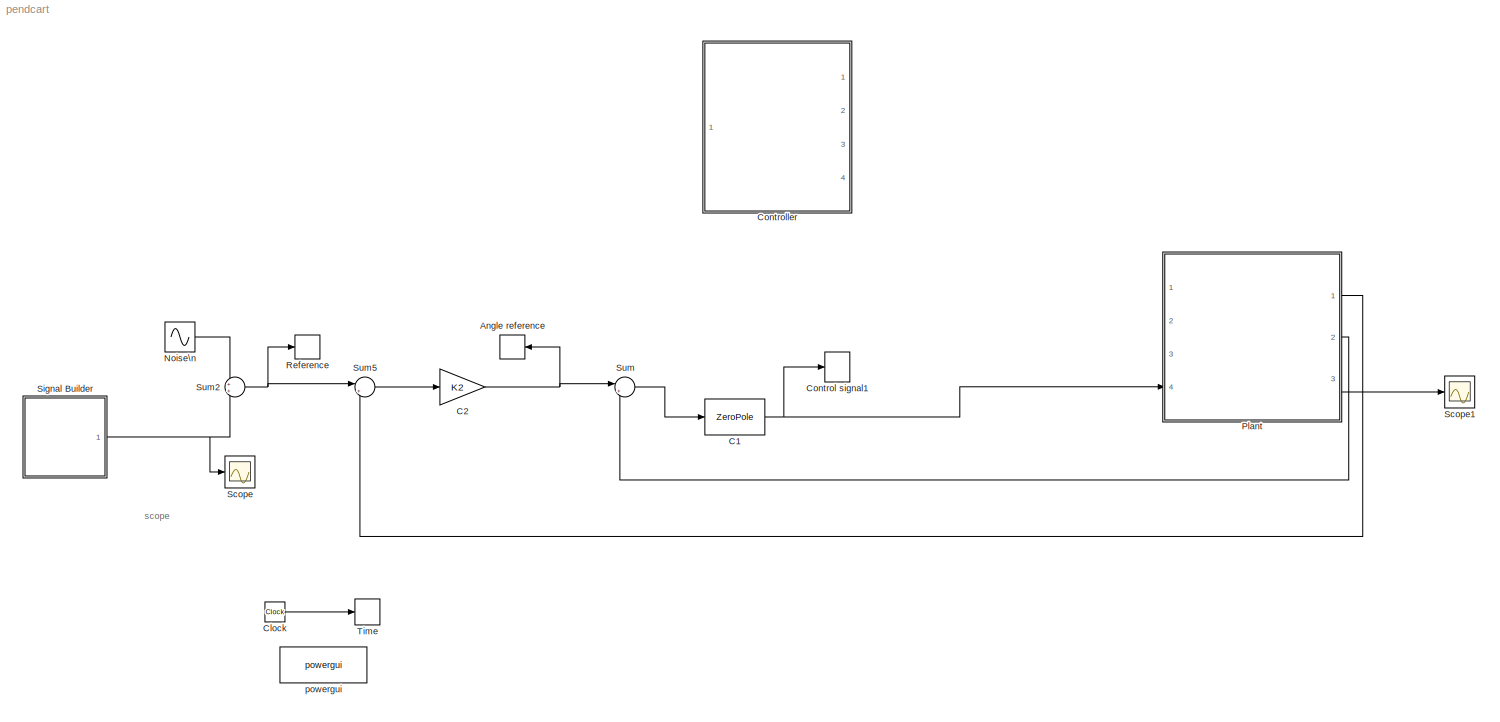
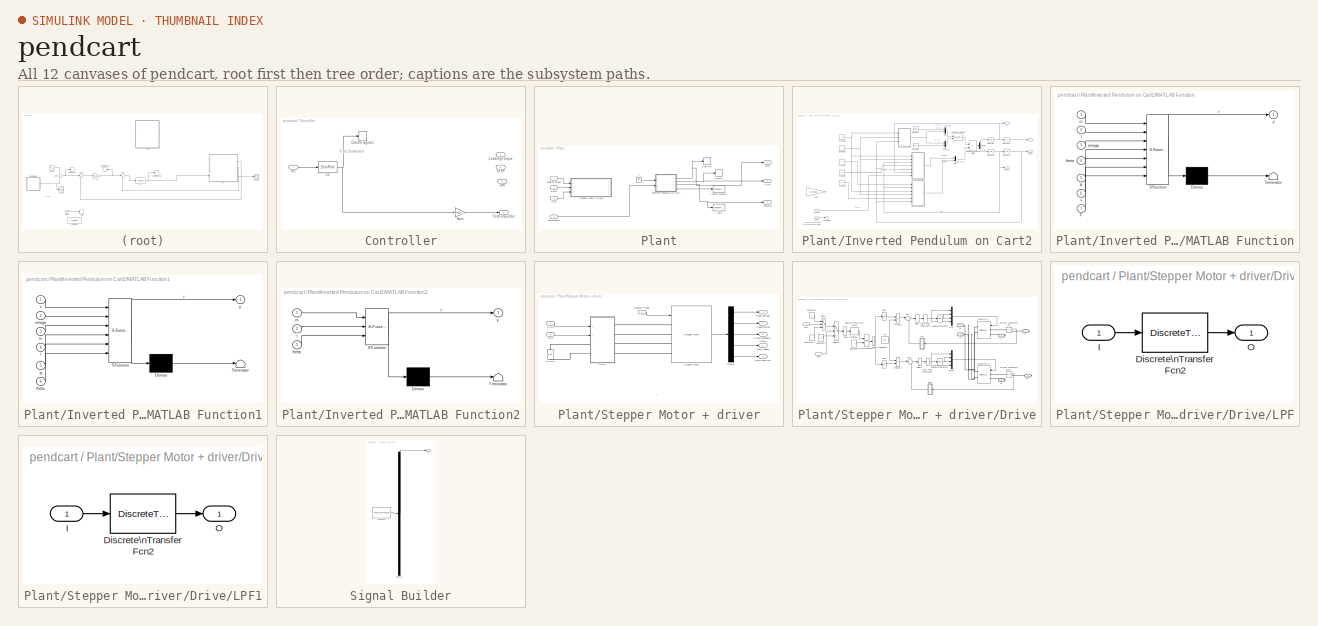
[diagram: thumbnail index - all 12 canvases of the model, root first then tree order]
MODEL pendcart
KIND model
BLOCK [ToWorkspace] Angle reference
  MaxDataPoints = inf
  Ports = [1]
  SID = 2
  SampleTime = -1
  VariableName = ri
BLOCK [ZeroPole] C1
  Gain = [K1]
  Poles = [-p1]
  SID = 376
  Zeros = [-p]
BLOCK [Gain] C2
  Gain = K2
  OutDataTypeStr = Inherit: Inherit via internal rule
  ParamDataTypeStr = Inherit: Inherit via internal rule
  SID = 114
  SaturateOnIntegerOverflow = off
BLOCK [Clock] Clock
  SID = 4
BLOCK [ToWorkspace] Control signal1
  MaxDataPoints = inf
  Ports = [1]
  SID = 377
  SampleTime = -1
  VariableName = u1
BLOCK [SubSystem] Controller
  Ports = [1, 4]
  RequestExecContextInheritance = off
  SID = 366
  Variant = off
BLOCK [ZeroPole] Controller/C1
  Gain = [K1]
  Poles = [-p1]
  SID = 368
  Zeros = [-p]
BLOCK [ToWorkspace] Controller/Control signal1
  MaxDataPoints = inf
  Ports = [1]
  SID = 369
  SampleTime = -1
  VariableName = u
BLOCK [Outport] Controller/DIR
  IconDisplay = Port number
  Port = 3
  SID = 373
BLOCK [Gain] Controller/Gain
  Gain = Wheel_Radius
  OutDataTypeStr = Inherit: Inherit via internal rule
  ParamDataTypeStr = Inherit: Inherit via internal rule
  SID = 370
  SaturateOnIntegerOverflow = off
BLOCK [Inport] Controller/In1
  IconDisplay = Port number
  SID = 367
BLOCK [Outport] Controller/LoadingTorque
  IconDisplay = Port number
  SID = 371
BLOCK [Outport] Controller/STEP
  IconDisplay = Port number
  Port = 2
  SID = 372
BLOCK [Outport] Controller/TestTorqueOut
  IconDisplay = Port number
  Port = 4
  SID = 374
BLOCK [Sin] Noise\n
  Amplitude = 0.01
  Frequency = 3
  Ports = [0, 1]
  SID = 264
  SampleTime = 0
BLOCK [SubSystem] Plant
  Ports = [4, 3]
  RequestExecContextInheritance = off
  SID = 343
  Variant = off
BLOCK [Ground] Plant/0
  SID = 94
BLOCK [ToWorkspace] Plant/Angle
  MaxDataPoints = inf
  Ports = [1]
  SID = 1
  SampleTime = -1
  VariableName = theta
BLOCK [ToWorkspace] Plant/Angular velocity
  MaxDataPoints = inf
  Ports = [1]
  SID = 3
  SampleTime = -1
  VariableName = omega
BLOCK [Inport] Plant/DIR
  IconDisplay = Port number
  Port = 3
  SID = 346
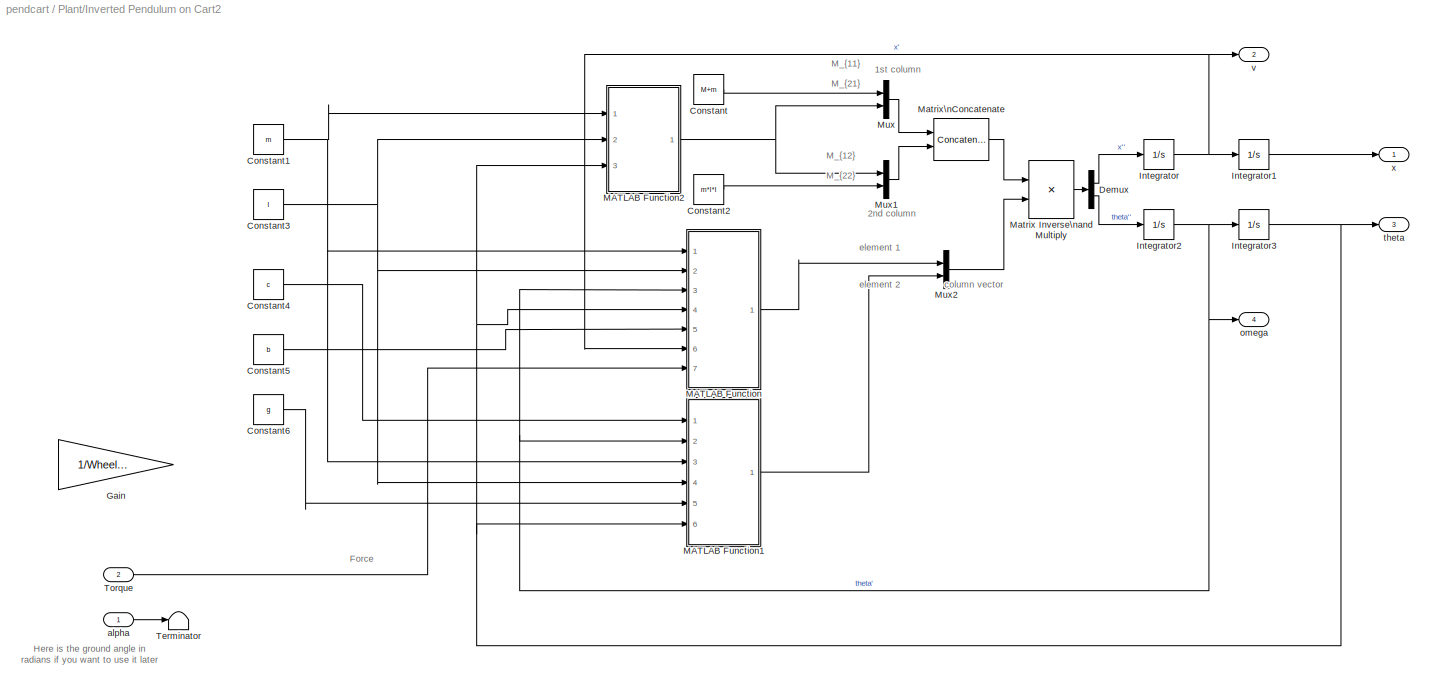
BLOCK [SubSystem] Plant/Inverted Pendulum on Cart2
  Ports = [2, 4]
  RequestExecContextInheritance = off
  SID = 16
  Variant = off
BLOCK [Constant] Plant/Inverted Pendulum on Cart2/Constant
  SID = 134
  Value = M+m
BLOCK [Constant] Plant/Inverted Pendulum on Cart2/Constant1
  SID = 135
  Value = m
BLOCK [Constant] Plant/Inverted Pendulum on Cart2/Constant2
  SID = 136
  Value = m*l*l
BLOCK [Constant] Plant/Inverted Pendulum on Cart2/Constant3
  SID = 137
  Value = l
BLOCK [Constant] Plant/Inverted Pendulum on Cart2/Constant4
  SID = 138
  Value = c
BLOCK [Constant] Plant/Inverted Pendulum on Cart2/Constant5
  SID = 139
  Value = b
BLOCK [Constant] Plant/Inverted Pendulum on Cart2/Constant6
  SID = 140
  Value = g
BLOCK [Demux] Plant/Inverted Pendulum on Cart2/Demux
  DisplayOption = bar
  Outputs = 2
  Ports = [1, 2]
  SID = 141
BLOCK [Gain] Plant/Inverted Pendulum on Cart2/Gain
  Gain = 1/Wheel_Radius
  OutDataTypeStr = Inherit: Inherit via internal rule
  ParamDataTypeStr = Inherit: Inherit via internal rule
  SID = 268
  SaturateOnIntegerOverflow = off
BLOCK [Integrator] Plant/Inverted Pendulum on Cart2/Integrator
  Ports = [1, 1]
  SID = 142
BLOCK [Integrator] Plant/Inverted Pendulum on Cart2/Integrator1
  Ports = [1, 1]
  SID = 143
BLOCK [Integrator] Plant/Inverted Pendulum on Cart2/Integrator2
  Ports = [1, 1]
  SID = 144
BLOCK [Integrator] Plant/Inverted Pendulum on Cart2/Integrator3
  InitialCondition = theta0
  Ports = [1, 1]
  SID = 145
BLOCK [SubSystem] Plant/Inverted Pendulum on Cart2/MATLAB Function
  ErrorFcn = Stateflow.Translate.translate
  PermitHierarchicalResolution = ExplicitOnly
  Ports = [7, 1]
  RequestExecContextInheritance = off
  SFBlockType = MATLAB Function
  SID = 146
  TreatAsAtomicUnit = on
  Variant = off
BLOCK [Demux] Plant/Inverted Pendulum on Cart2/MATLAB Function/ Demux 
  Outputs = 1
  Ports = [1, 1]
  SID = 146::20
BLOCK [S-Function] Plant/Inverted Pendulum on Cart2/MATLAB Function/ SFunction 
  EnableBusSupport = on
  FunctionName = sf_sfun
  PortCounts = [7 2]
  Ports = [7, 2]
  SFcnIsStateOwnerBlock = off
  SFunctionDeploymentMode = off
  SID = 146::19
  Tag = Stateflow S-Function pendcart 2
BLOCK [Terminator] Plant/Inverted Pendulum on Cart2/MATLAB Function/ Terminator 
  SID = 146::21
BLOCK [Inport] Plant/Inverted Pendulum on Cart2/MATLAB Function/F
  IconDisplay = Port number
  Port = 7
  SID = 146::29
BLOCK [Inport] Plant/Inverted Pendulum on Cart2/MATLAB Function/b
  IconDisplay = Port number
  Port = 5
  SID = 146::27
BLOCK [Inport] Plant/Inverted Pendulum on Cart2/MATLAB Function/l
  IconDisplay = Port number
  Port = 2
  SID = 146::24
BLOCK [Inport] Plant/Inverted Pendulum on Cart2/MATLAB Function/m
  IconDisplay = Port number
  SID = 146::23
BLOCK [Inport] Plant/Inverted Pendulum on Cart2/MATLAB Function/omega
  IconDisplay = Port number
  Port = 3
  SID = 146::25
BLOCK [Inport] Plant/Inverted Pendulum on Cart2/MATLAB Function/theta
  IconDisplay = Port number
  Port = 4
  SID = 146::26
BLOCK [Inport] Plant/Inverted Pendulum on Cart2/MATLAB Function/v
  IconDisplay = Port number
  Port = 6
  SID = 146::28
BLOCK [Outport] Plant/Inverted Pendulum on Cart2/MATLAB Function/y
  IconDisplay = Port number
  SID = 146::5
BLOCK [SubSystem] Plant/Inverted Pendulum on Cart2/MATLAB Function1
  ErrorFcn = Stateflow.Translate.translate
  PermitHierarchicalResolution = ExplicitOnly
  Ports = [6, 1]
  RequestExecContextInheritance = off
  SFBlockType = MATLAB Function
  SID = 147
  TreatAsAtomicUnit = on
  Variant = off
BLOCK [Demux] Plant/Inverted Pendulum on Cart2/MATLAB Function1/ Demux 
  Outputs = 1
  Ports = [1, 1]
  SID = 147::20
BLOCK [S-Function] Plant/Inverted Pendulum on Cart2/MATLAB Function1/ SFunction 
  EnableBusSupport = on
  FunctionName = sf_sfun
  PortCounts = [6 2]
  Ports = [6, 2]
  SFcnIsStateOwnerBlock = off
  SFunctionDeploymentMode = off
  SID = 147::19
  Tag = Stateflow S-Function pendcart 1
BLOCK [Terminator] Plant/Inverted Pendulum on Cart2/MATLAB Function1/ Terminator 
  SID = 147::21
BLOCK [Inport] Plant/Inverted Pendulum on Cart2/MATLAB Function1/c
  IconDisplay = Port number
  SID = 147::23
BLOCK [Inport] Plant/Inverted Pendulum on Cart2/MATLAB Function1/g
  IconDisplay = Port number
  Port = 5
  SID = 147::27
BLOCK [Inport] Plant/Inverted Pendulum on Cart2/MATLAB Function1/l
  IconDisplay = Port number
  Port = 4
  SID = 147::26
BLOCK [Inport] Plant/Inverted Pendulum on Cart2/MATLAB Function1/m
  IconDisplay = Port number
  Port = 3
  SID = 147::25
BLOCK [Inport] Plant/Inverted Pendulum on Cart2/MATLAB Function1/omega
  IconDisplay = Port number
  Port = 2
  SID = 147::24
BLOCK [Inport] Plant/Inverted Pendulum on Cart2/MATLAB Function1/theta
  IconDisplay = Port number
  Port = 6
  SID = 147::28
BLOCK [Outport] Plant/Inverted Pendulum on Cart2/MATLAB Function1/y
  IconDisplay = Port number
  SID = 147::5
BLOCK [SubSystem] Plant/Inverted Pendulum on Cart2/MATLAB Function2
  ErrorFcn = Stateflow.Translate.translate
  PermitHierarchicalResolution = ExplicitOnly
  Ports = [3, 1]
  RequestExecContextInheritance = off
  SFBlockType = MATLAB Function
  SID = 148
  TreatAsAtomicUnit = on
  Variant = off
BLOCK [Demux] Plant/Inverted Pendulum on Cart2/MATLAB Function2/ Demux 
  Outputs = 1
  Ports = [1, 1]
  SID = 148::20
BLOCK [S-Function] Plant/Inverted Pendulum on Cart2/MATLAB Function2/ SFunction 
  EnableBusSupport = on
  FunctionName = sf_sfun
  PortCounts = [3 2]
  Ports = [3, 2]
  SFcnIsStateOwnerBlock = off
  SFunctionDeploymentMode = off
  SID = 148::19
  Tag = Stateflow S-Function pendcart 3
BLOCK [Terminator] Plant/Inverted Pendulum on Cart2/MATLAB Function2/ Terminator 
  SID = 148::21
BLOCK [Inport] Plant/Inverted Pendulum on Cart2/MATLAB Function2/l
  IconDisplay = Port number
  Port = 2
  SID = 148::24
BLOCK [Inport] Plant/Inverted Pendulum on Cart2/MATLAB Function2/m
  IconDisplay = Port number
  SID = 148::23
BLOCK [Inport] Plant/Inverted Pendulum on Cart2/MATLAB Function2/theta
  IconDisplay = Port number
  Port = 3
  SID = 148::25
BLOCK [Outport] Plant/Inverted Pendulum on Cart2/MATLAB Function2/y
  IconDisplay = Port number
  SID = 148::5
BLOCK [Product] Plant/Inverted Pendulum on Cart2/Matrix Inverse\nand Multiply
  InputSameDT = off
  Inputs = /*
  Multiplication = Matrix(*)
  OutDataTypeStr = Inherit: Inherit via internal rule
  Ports = [2, 1]
  RndMeth = Floor
  SID = 150
  SaturateOnIntegerOverflow = off
BLOCK [Concatenate] Plant/Inverted Pendulum on Cart2/Matrix\nConcatenate
  ConcatenateDimension = 2
  Mode = Multidimensional array
  Ports = [2, 1]
  SID = 149
BLOCK [Mux] Plant/Inverted Pendulum on Cart2/Mux
  DisplayOption = bar
  Inputs = 2
  Ports = [2, 1]
  SID = 151
BLOCK [Mux] Plant/Inverted Pendulum on Cart2/Mux1
  DisplayOption = bar
  Inputs = 2
  Ports = [2, 1]
  SID = 152
BLOCK [Mux] Plant/Inverted Pendulum on Cart2/Mux2
  DisplayOption = bar
  Inputs = 2
  Ports = [2, 1]
  SID = 153
BLOCK [Terminator] Plant/Inverted Pendulum on Cart2/Terminator
  SID = 154
BLOCK [Inport] Plant/Inverted Pendulum on Cart2/Torque
  IconDisplay = Port number
  Port = 2
  SID = 267
BLOCK [Inport] Plant/Inverted Pendulum on Cart2/alpha
  IconDisplay = Port number
  SID = 132
BLOCK [Outport] Plant/Inverted Pendulum on Cart2/omega
  IconDisplay = Port number
  Port = 4
  SID = 158
BLOCK [Outport] Plant/Inverted Pendulum on Cart2/theta
  IconDisplay = Port number
  Port = 3
  SID = 157
BLOCK [Outport] Plant/Inverted Pendulum on Cart2/v
  IconDisplay = Port number
  Port = 2
  SID = 156
BLOCK [Outport] Plant/Inverted Pendulum on Cart2/x
  IconDisplay = Port number
  SID = 155
BLOCK [Inport] Plant/Loading Torque
  IconDisplay = Port number
  SID = 344
BLOCK [ToWorkspace] Plant/Position
  MaxDataPoints = inf
  Ports = [1]
  SID = 32
  SampleTime = -1
  VariableName = x
BLOCK [Inport] Plant/STEP
  IconDisplay = Port number
  Port = 2
  SID = 345
BLOCK [SubSystem] Plant/Stepper Motor + driver
  Ports = [3, 5]
  RequestExecContextInheritance = off
  SID = 272
  Variant = off
BLOCK [Reference] Plant/Stepper Motor + driver/28 VDC  REF=powerlib/Electrical\nSources/DC Voltage Source
  Amplitude = 28
  Measurements = None
  Ports = [0, 0, 0, 0, 0, 1, 1]
  SID = 286
  SourceBlock = powerlib/Electrical\nSources/DC Voltage Source
  SourceProductBaseCode = PS
  SourceProductName = Simscape Power Systems
  SourceType = DC Voltage Source
BLOCK [Inport] Plant/Stepper Motor + driver/DIR
  IconDisplay = Port number
  Port = 3
  SID = 340
BLOCK [Demux] Plant/Stepper Motor + driver/Demux
  DisplayOption = bar
  Outputs = 5
  Ports = [1, 5]
  SID = 270
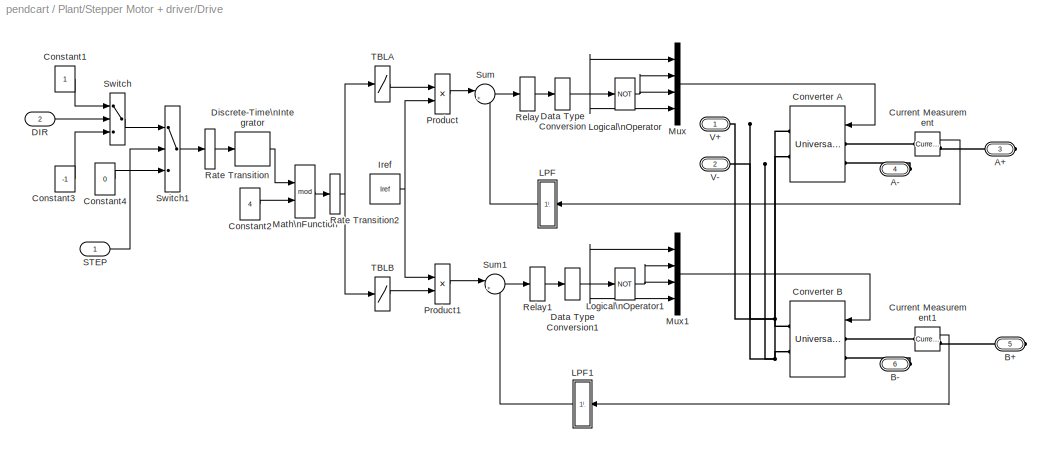
BLOCK [SubSystem] Plant/Stepper Motor + driver/Drive
  Ports = [2, 0, 0, 0, 0, 2, 4]
  RequestExecContextInheritance = off
  SID = 287
  Variant = off
BLOCK [PMIOPort] Plant/Stepper Motor + driver/Drive/A+
  Port = 3
  SID = 329
  Side = Right
BLOCK [PMIOPort] Plant/Stepper Motor + driver/Drive/A-
  Port = 4
  SID = 330
  Side = Right
BLOCK [PMIOPort] Plant/Stepper Motor + driver/Drive/B+
  Port = 5
  SID = 331
  Side = Right
BLOCK [PMIOPort] Plant/Stepper Motor + driver/Drive/B-
  Port = 6
  SID = 332
  Side = Right
BLOCK [Constant] Plant/Stepper Motor + driver/Drive/Constant1
  SID = 290
  SampleTime = Ts
BLOCK [Constant] Plant/Stepper Motor + driver/Drive/Constant2
  SID = 291
  SampleTime = Nstep*Ts
  Value = 4
BLOCK [Constant] Plant/Stepper Motor + driver/Drive/Constant3
  SID = 292
  SampleTime = Ts
  Value = -1
BLOCK [Constant] Plant/Stepper Motor + driver/Drive/Constant4
  SID = 293
  SampleTime = Ts
  Value = 0
BLOCK [Reference] Plant/Stepper Motor + driver/Drive/Converter A  REF=powerlib/Power\nElectronics/Universal Bridge
  Arms = 2
  Device = MOSFET / Diodes
  ForwardVoltage = 0
  ForwardVoltages = [  0  0  ]
  GTOparameters = [ 10e-6 , 20e-6 ]
  IGBTparameters = [ 0.5e-6 , 0.5e-6 ]
  Lon = 0
  Measurements = None
  Measurements_2 = None
  Ports = [1, 0, 0, 0, 0, 2, 2]
  Ron = 1e-3*10
  SID = 294
  SnubberCapacitance = inf
  SnubberResistance = 10000
  SourceBlock = powerlib/Power\nElectronics/Universal Bridge
  SourceProductBaseCode = PS
  SourceProductName = Simscape Power Systems
  SourceType = Universal Bridge
  converterType = Rectifier
BLOCK [Reference] Plant/Stepper Motor + driver/Drive/Converter B  REF=powerlib/Power\nElectronics/Universal Bridge
  Arms = 2
  Device = MOSFET / Diodes
  ForwardVoltage = 0
  ForwardVoltages = [  0  0  ]
  GTOparameters = [ 10e-6 , 20e-6 ]
  IGBTparameters = [ 0.5e-6 , 0.5e-6 ]
  Lon = 0
  Measurements = None
  Measurements_2 = None
  Ports = [1, 0, 0, 0, 0, 2, 2]
  Ron = 1e-3*10
  SID = 295
  SnubberCapacitance = inf
  SnubberResistance = 10000
  SourceBlock = powerlib/Power\nElectronics/Universal Bridge
  SourceProductBaseCode = PS
  SourceProductName = Simscape Power Systems
  SourceType = Universal Bridge
  converterType = Rectifier
BLOCK [Reference] Plant/Stepper Motor + driver/Drive/Current Measurement  REF=powerlib/Measurements/Current Measurement
  OutputType = Complex
  PSBequivalent = 0
  PhasorSimulation = off
  Ports = [0, 1, 0, 0, 0, 1, 1]
  SID = 296
  SourceBlock = powerlib/Measurements/Current Measurement
  SourceProductBaseCode = PS
  SourceProductName = Simscape Power Systems
  SourceType = Current Measurement
BLOCK [Reference] Plant/Stepper Motor + driver/Drive/Current Measurement1  REF=powerlib/Measurements/Current Measurement
  OutputType = Complex
  PSBequivalent = 0
  PhasorSimulation = off
  Ports = [0, 1, 0, 0, 0, 1, 1]
  SID = 297
  SourceBlock = powerlib/Measurements/Current Measurement
  SourceProductBaseCode = PS
  SourceProductName = Simscape Power Systems
  SourceType = Current Measurement
BLOCK [Inport] Plant/Stepper Motor + driver/Drive/DIR
  IconDisplay = Port number
  Port = 2
  SID = 289
BLOCK [DataTypeConversion] Plant/Stepper Motor + driver/Drive/Data Type Conversion
  RndMeth = Floor
  SID = 298
  SaturateOnIntegerOverflow = off
BLOCK [DataTypeConversion] Plant/Stepper Motor + driver/Drive/Data Type Conversion1
  RndMeth = Floor
  SID = 299
  SaturateOnIntegerOverflow = off
BLOCK [DiscreteIntegrator] Plant/Stepper Motor + driver/Drive/Discrete-Time\nIntegrator
  ICPrevOutput = DiscIntNeverNeededParam
  ICPrevScaledInput = DiscIntNeverNeededParam
  IntegratorMethod = Accumulation: Forward Euler
  Ports = [1, 1]
  SID = 300
  SampleTime = Nstep*Ts
BLOCK [Constant] Plant/Stepper Motor + driver/Drive/Iref
  SID = 301
  SampleTime = Ts
  Value = Iref
BLOCK [SubSystem] Plant/Stepper Motor + driver/Drive/LPF
  Ports = [1, 1]
  RequestExecContextInheritance = off
  SID = 302
  Variant = off
BLOCK [DiscreteTransferFcn] Plant/Stepper Motor + driver/Drive/LPF/Discrete\nTransfer Fcn2
  Denominator = DD
  InputPortMap = u0
  Numerator = NN
  Ports = [1, 1]
  SID = 304
  SampleTime = Ts
BLOCK [Inport] Plant/Stepper Motor + driver/Drive/LPF/I
  IconDisplay = Port number
  SID = 303
BLOCK [Outport] Plant/Stepper Motor + driver/Drive/LPF/O
  IconDisplay = Port number
  SID = 305
BLOCK [SubSystem] Plant/Stepper Motor + driver/Drive/LPF1
  Ports = [1, 1]
  RequestExecContextInheritance = off
  SID = 306
  Variant = off
BLOCK [DiscreteTransferFcn] Plant/Stepper Motor + driver/Drive/LPF1/Discrete\nTransfer Fcn2
  Denominator = DD
  InputPortMap = u0
  Numerator = NN
  Ports = [1, 1]
  SID = 308
  SampleTime = Ts
BLOCK [Inport] Plant/Stepper Motor + driver/Drive/LPF1/I
  IconDisplay = Port number
  SID = 307
BLOCK [Outport] Plant/Stepper Motor + driver/Drive/LPF1/O
  IconDisplay = Port number
  SID = 309
BLOCK [Logic] Plant/Stepper Motor + driver/Drive/Logical\nOperator
  AllPortsSameDT = off
  Operator = NOT
  OutDataTypeStr = boolean
  Ports = [1, 1]
  SID = 310
BLOCK [Logic] Plant/Stepper Motor + driver/Drive/Logical\nOperator1
  AllPortsSameDT = off
  Operator = NOT
  OutDataTypeStr = boolean
  Ports = [1, 1]
  SID = 311
BLOCK [Math] Plant/Stepper Motor + driver/Drive/Math\nFunction
  Operator = mod
  Ports = [2, 1]
  SID = 312
  SampleTime = Nstep*Ts
BLOCK [Mux] Plant/Stepper Motor + driver/Drive/Mux
  DisplayOption = bar
  Ports = [4, 1]
  SID = 313
BLOCK [Mux] Plant/Stepper Motor + driver/Drive/Mux1
  DisplayOption = bar
  Ports = [4, 1]
  SID = 314
BLOCK [Product] Plant/Stepper Motor + driver/Drive/Product
  InputSameDT = off
  OutDataTypeStr = Inherit: Inherit via internal rule
  Ports = [2, 1]
  SID = 315
  SaturateOnIntegerOverflow = off
BLOCK [Product] Plant/Stepper Motor + driver/Drive/Product1
  InputSameDT = off
  OutDataTypeStr = Inherit: Inherit via internal rule
  Ports = [2, 1]
  SID = 316
  SaturateOnIntegerOverflow = off
BLOCK [RateTransition] Plant/Stepper Motor + driver/Drive/Rate Transition
  SID = 317
BLOCK [RateTransition] Plant/Stepper Motor + driver/Drive/Rate Transition2
  SID = 318
BLOCK [Relay] Plant/Stepper Motor + driver/Drive/Relay
  OffSwitchValue = -0.01
  OnSwitchValue = 0.01
  SID = 319
BLOCK [Relay] Plant/Stepper Motor + driver/Drive/Relay1
  OffSwitchValue = -0.01
  OnSwitchValue = 0.01
  OutDataTypeStr = Inherit: Inherit via back propagation
  SID = 320
BLOCK [Inport] Plant/Stepper Motor + driver/Drive/STEP
  IconDisplay = Port number
  SID = 288
BLOCK [Sum] Plant/Stepper Motor + driver/Drive/Sum
  IconShape = round
  InputSameDT = off
  Inputs = |+-
  Ports = [2, 1]
  SID = 321
  SaturateOnIntegerOverflow = off
BLOCK [Sum] Plant/Stepper Motor + driver/Drive/Sum1
  IconShape = round
  InputSameDT = off
  Inputs = |+-
  Ports = [2, 1]
  SID = 322
  SaturateOnIntegerOverflow = off
BLOCK [Switch] Plant/Stepper Motor + driver/Drive/Switch
  InputSameDT = off
  SID = 323
  SampleTime = Ts
  SaturateOnIntegerOverflow = off
  Threshold = 0.5
  ZeroCross = off
BLOCK [Switch] Plant/Stepper Motor + driver/Drive/Switch1
  InputSameDT = off
  SID = 324
  SampleTime = Ts
  SaturateOnIntegerOverflow = off
  Threshold = 0.5
  ZeroCross = off
BLOCK [Lookup] Plant/Stepper Motor + driver/Drive/TBLA
  InputValues = [0:3]
  SID = 325
  SampleTime = Ts
  SaturateOnIntegerOverflow = off
  Table = [1 0 -1 0]
BLOCK [Lookup] Plant/Stepper Motor + driver/Drive/TBLB
  InputValues = [0:3]
  SID = 326
  SampleTime = Ts
  SaturateOnIntegerOverflow = off
  Table = [0 1 0 -1]
BLOCK [PMIOPort] Plant/Stepper Motor + driver/Drive/V+
  Port = 1
  SID = 327
  Side = Left
BLOCK [PMIOPort] Plant/Stepper Motor + driver/Drive/V-
  Port = 2
  SID = 328
  Side = Left
BLOCK [Outport] Plant/Stepper Motor + driver/Electromagnetic torque
  IconDisplay = Port number
  Port = 3
  SID = 276
BLOCK [Inport] Plant/Stepper Motor + driver/Loading Torque
  IconDisplay = Port number
  SID = 273
BLOCK [Outport] Plant/Stepper Motor + driver/Phase current
  IconDisplay = Port number
  Port = 2
  SID = 275
BLOCK [Outport] Plant/Stepper Motor + driver/Phase voltage
  IconDisplay = Port number
  SID = 274
BLOCK [Outport] Plant/Stepper Motor + driver/Rotor position
  IconDisplay = Port number
  Port = 5
  SID = 278
BLOCK [Outport] Plant/Stepper Motor + driver/Rotor speed
  IconDisplay = Port number
  Port = 4
  SID = 277
BLOCK [Inport] Plant/Stepper Motor + driver/STEP
  IconDisplay = Port number
  Port = 2
  SID = 339
BLOCK [Reference] Plant/Stepper Motor + driver/Stepper Motor  REF=powerlib/Machines/Stepper Motor
  B = 1e-3
  J = 1e-4/5
  L = 10e-3
  Lmax = 10e-3
  Lmin = 2e-3
  MotorType = Permanent-magnet / Hybrid
  NumberOfPhases_1 = 2
  NumberOfPhases_2 = 3
  Ports = [1, 1, 0, 0, 0, 4]
  PresetModel_1 = <empty>
  PresetModel_2 = <empty>
  Psim = 0.04
  R = 1.2
  SID = 266
  SourceBlock = powerlib/Machines/Stepper Motor
  SourceProductBaseCode = PS
  SourceProductName = Simscape Power Systems
  SourceType = Stepper Motor
  Step_angle = 30
  Tdm = 0.02
  TsBlock = -1
  TsPowergui = 0
  pos0 = 0
  w0 = 0
BLOCK [Inport] Plant/TestTorqueIn
  IconDisplay = Port number
  Port = 4
  SID = 361
BLOCK [Outport] Plant/ThetaOut
  IconDisplay = Port number
  Port = 2
  SID = 355
BLOCK [Outport] Plant/VOut
  IconDisplay = Port number
  SID = 354
BLOCK [ToWorkspace] Plant/Velocity
  MaxDataPoints = inf
  Ports = [1]
  SID = 41
  SampleTime = -1
  VariableName = v
BLOCK [Outport] Plant/xOut
  IconDisplay = Port number
  Port = 3
  SID = 384
BLOCK [ToWorkspace] Reference
  MaxDataPoints = inf
  Ports = [1]
  SID = 33
  SampleTime = -1
  VariableName = r
BLOCK [Scope] Scope
  NumInputPorts = 1
  Ports = [1]
  SID = 383
  ScopeSpecificationString = Simulink.scopes.TimeScopeBlockCfg('CurrentConfiguration', extmgr.ConfigurationSet(extmgr.Configuration('Core','General UI',true),extmgr.Configuration('Core','Source UI',true),extmgr.Configuration('Sources','WiredSimulink',true),extmgr.Configuration('Visuals','Time Domain',true),extmgr.Configuration('Tools','Plot Navigation',true),extmgr.Configuration('Tools','Measurements',true)),'Version','2017a'...<+1ch>
BLOCK [Scope] Scope1
  NumInputPorts = 1
  Ports = [1]
  SID = 385
  ScopeSpecificationString = Simulink.scopes.TimeScopeBlockCfg('CurrentConfiguration', extmgr.ConfigurationSet(extmgr.Configuration('Core','General UI',true),extmgr.Configuration('Core','Source UI',true),extmgr.Configuration('Sources','WiredSimulink',true,'DataLoggingVariableName','ScopeData1'),extmgr.Configuration('Visuals','Time Domain',true,'SerializedDisplays',{struct('MinYLimReal','-0.00453','MaxYLimReal','0.04074','YLab...<+1421ch>
BLOCK [SubSystem] Signal Builder
  ClipboardFcn = sigbuilder_block('clipboard');
  CloseFcn = sigbuilder_block('close');
  ContinueFcn = sigbuilder_block('continue')
  CopyFcn = sigbuilder_block('copy');
  DeleteFcn = sigbuilder_block('delete');
  LoadFcn = sigbuilder_block('load',[5.5 23 949 425 ]);
  MaskHideContents = on
  ModelCloseFcn = sigbuilder_block('modelClose');
  NameChangeFcn = sigbuilder_block('namechange');
  OpenFcn = sigbuilder_block('open',[5.5 23 949 425 ]);
  PauseFcn = sigbuilder_block('pause')
  Ports = [0, 1]
  PreSaveFcn = sigbuilder_block('preSave');
  RequestExecContextInheritance = off
  SID = 378
  StartFcn = sigbuilder_block('start');
  StopFcn = sigbuilder_block('stop');
  Tag = STV Subsys
  Variant = off
BLOCK [Demux] Signal Builder/Demux
  Outputs = 1
  Ports = [1, 1]
  SID = 379
  Tag = STV Demux
BLOCK [FromWorkspace] Signal Builder/FromWs
  SID = 380
  SampleTime = 0
  SigBuilderData = DataTag0
  Tag = STV FromWs
  VariableName = tuvar
  VnvData = DataTag1
  ZeroCross = on
BLOCK [Outport] Signal Builder/R
  IconDisplay = Port number
  SID = 381
  Tag = STV Outport
BLOCK [Sum] Sum
  IconShape = round
  InputSameDT = off
  Inputs = |+-
  OutDataTypeStr = Inherit: Inherit via internal rule
  Ports = [2, 1]
  SID = 35
  SaturateOnIntegerOverflow = off
BLOCK [Sum] Sum2
  IconShape = round
  InputSameDT = off
  OutDataTypeStr = Inherit: Inherit via internal rule
  Ports = [2, 1]
  SID = 86
  SaturateOnIntegerOverflow = off
BLOCK [Sum] Sum5
  IconShape = round
  InputSameDT = off
  Inputs = |+-
  OutDataTypeStr = Inherit: Inherit via internal rule
  Ports = [2, 1]
  SID = 38
  SaturateOnIntegerOverflow = off
BLOCK [ToWorkspace] Time
  MaxDataPoints = inf
  Ports = [1]
  SID = 40
  SampleTime = -1
  VariableName = t
BLOCK [Reference] powergui  REF=powerlib/powergui
  CurrentSourceSwitches = off
  DisableRonSwitches = off
  DisableSnubberDevices = off
  DisableVfSwitches = off
  DisplayEquations = off
  DisplayStyle = 1
  EnableUseOfTLC = off
  ErrMax = 1e-4
  ExternalGateDelay = off
  Frange = [0:2:500]
  FreqAxis = off
  FunctionMessages = off
  HookPort = off
  Interpol = off
  Iterations = 50
  MaxFrequency = 1000
  Pbase = 100e6
  Ports = []
  ResistiveCurrentMeasurement = off
  RestoreLinks = warning
  RmsSteady = 1
  SID = 362
  SPID = off
  SampleTime = Ts
  ShowGrid = off
  SolverType = Tustin/Backward Euler (TBE)
  SourceBlock = powerlib/powergui
  SourceProductBaseCode = PS
  SourceProductName = Simscape Power Systems
  SourceType = PSB option menu block
  StartTime = 0.0
  SwTol = 0
  Ts = 0
  UnitsV = kV
  UnitsW = MW
  Xlog = on
  Ylog = off
  ZoomFFT = on
  buscounter = 0
  cycles = 1
  display = off
  echomessages = off
  frequency = 60
  frequencyindice = 0
  frequencyindicesteady = 1
  fundamental = 60
  methode = off
  save = off
  structure = 0
  variable = ZData
  x0status = blocks
ANNOTATION (root): scope
ANNOTATION Controller: Force Demanded
ANNOTATION Plant/Inverted Pendulum on Cart2: 1st column
ANNOTATION Plant/Inverted Pendulum on Cart2: 2nd column
ANNOTATION Plant/Inverted Pendulum on Cart2: Force
ANNOTATION Plant/Inverted Pendulum on Cart2: Here is the ground angle in\nradians if you want to use it later
ANNOTATION Plant/Inverted Pendulum on Cart2: M_{11}
ANNOTATION Plant/Inverted Pendulum on Cart2: M_{12}
ANNOTATION Plant/Inverted Pendulum on Cart2: M_{21}
ANNOTATION Plant/Inverted Pendulum on Cart2: M_{22}
ANNOTATION Plant/Inverted Pendulum on Cart2: column vector
ANNOTATION Plant/Inverted Pendulum on Cart2: element 1
ANNOTATION Plant/Inverted Pendulum on Cart2: element 2
ANNOTATION Plant/Stepper Motor + driver: \n \n \n \n \n 1 \n \n Phase voltage \n \n V \n \n Vph \n \n \n 2 \n \n Phase current \n \n A \n \n Iph \n \n \n 3 \n \n Electromagnetic torque \n \n N.m \n \n Te \n \n \n 4 \n \n Rotor speed \n \n rad/s \n \n w \n \n \n 5 \n \n Rotor position \n \n https://au.mathworks.com/help/physmod/sps/powersys/ref/steppermotor.html \n \n \n \n
NET C1:1 -> Control signal1:1, Plant:4
NET C2:1 -> Angle reference:1, Sum:1
LINE Clock:1 -> Time:1
NET Controller/C1:1 -> Controller/Control signal1:1, Controller/Gain:1
LINE Controller/Gain:1 -> Controller/TestTorqueOut:1
LINE Controller/In1:1 -> Controller/C1:1
LINE Noise\n:1 -> Sum2:1
LINE Plant/0:1 -> Plant/Inverted Pendulum on Cart2:1
LINE Plant/DIR:1 -> Plant/Stepper Motor + driver:3
NET Plant/Inverted Pendulum on Cart2/Constant1:1 -> Plant/Inverted Pendulum on Cart2/MATLAB Function1:3, Plant/Inverted Pendulum on Cart2/MATLAB Function2:1, Plant/Inverted Pendulum on Cart2/MATLAB Function:1
LINE Plant/Inverted Pendulum on Cart2/Constant2:1 -> Plant/Inverted Pendulum on Cart2/Mux1:2
NET Plant/Inverted Pendulum on Cart2/Constant3:1 -> Plant/Inverted Pendulum on Cart2/MATLAB Function1:4, Plant/Inverted Pendulum on Cart2/MATLAB Function2:2, Plant/Inverted Pendulum on Cart2/MATLAB Function:2
LINE Plant/Inverted Pendulum on Cart2/Constant4:1 -> Plant/Inverted Pendulum on Cart2/MATLAB Function1:1
LINE Plant/Inverted Pendulum on Cart2/Constant5:1 -> Plant/Inverted Pendulum on Cart2/MATLAB Function:5
LINE Plant/Inverted Pendulum on Cart2/Constant6:1 -> Plant/Inverted Pendulum on Cart2/MATLAB Function1:5
LINE Plant/Inverted Pendulum on Cart2/Constant:1 -> Plant/Inverted Pendulum on Cart2/Mux:1
LINE Plant/Inverted Pendulum on Cart2/Demux:1 -> Plant/Inverted Pendulum on Cart2/Integrator:1
LINE Plant/Inverted Pendulum on Cart2/Demux:2 -> Plant/Inverted Pendulum on Cart2/Integrator2:1
LINE Plant/Inverted Pendulum on Cart2/Integrator1:1 -> Plant/Inverted Pendulum on Cart2/x:1
NET Plant/Inverted Pendulum on Cart2/Integrator2:1 -> Plant/Inverted Pendulum on Cart2/Integrator3:1, Plant/Inverted Pendulum on Cart2/MATLAB Function1:2, Plant/Inverted Pendulum on Cart2/MATLAB Function:3, Plant/Inverted Pendulum on Cart2/omega:1
NET Plant/Inverted Pendulum on Cart2/Integrator3:1 -> Plant/Inverted Pendulum on Cart2/MATLAB Function1:6, Plant/Inverted Pendulum on Cart2/MATLAB Function2:3, Plant/Inverted Pendulum on Cart2/MATLAB Function:4, Plant/Inverted Pendulum on Cart2/theta:1
NET Plant/Inverted Pendulum on Cart2/Integrator:1 -> Plant/Inverted Pendulum on Cart2/Integrator1:1, Plant/Inverted Pendulum on Cart2/MATLAB Function:6, Plant/Inverted Pendulum on Cart2/v:1
LINE Plant/Inverted Pendulum on Cart2/MATLAB Function/ Demux :1 -> Plant/Inverted Pendulum on Cart2/MATLAB Function/ Terminator :1
LINE Plant/Inverted Pendulum on Cart2/MATLAB Function/ SFunction :1 -> Plant/Inverted Pendulum on Cart2/MATLAB Function/ Demux :1
LINE Plant/Inverted Pendulum on Cart2/MATLAB Function/ SFunction :2 -> Plant/Inverted Pendulum on Cart2/MATLAB Function/y:1
LINE Plant/Inverted Pendulum on Cart2/MATLAB Function/F:1 -> Plant/Inverted Pendulum on Cart2/MATLAB Function/ SFunction :7
LINE Plant/Inverted Pendulum on Cart2/MATLAB Function/b:1 -> Plant/Inverted Pendulum on Cart2/MATLAB Function/ SFunction :5
LINE Plant/Inverted Pendulum on Cart2/MATLAB Function/l:1 -> Plant/Inverted Pendulum on Cart2/MATLAB Function/ SFunction :2
LINE Plant/Inverted Pendulum on Cart2/MATLAB Function/m:1 -> Plant/Inverted Pendulum on Cart2/MATLAB Function/ SFunction :1
LINE Plant/Inverted Pendulum on Cart2/MATLAB Function/omega:1 -> Plant/Inverted Pendulum on Cart2/MATLAB Function/ SFunction :3
LINE Plant/Inverted Pendulum on Cart2/MATLAB Function/theta:1 -> Plant/Inverted Pendulum on Cart2/MATLAB Function/ SFunction :4
LINE Plant/Inverted Pendulum on Cart2/MATLAB Function/v:1 -> Plant/Inverted Pendulum on Cart2/MATLAB Function/ SFunction :6
LINE Plant/Inverted Pendulum on Cart2/MATLAB Function1/ Demux :1 -> Plant/Inverted Pendulum on Cart2/MATLAB Function1/ Terminator :1
LINE Plant/Inverted Pendulum on Cart2/MATLAB Function1/ SFunction :1 -> Plant/Inverted Pendulum on Cart2/MATLAB Function1/ Demux :1
LINE Plant/Inverted Pendulum on Cart2/MATLAB Function1/ SFunction :2 -> Plant/Inverted Pendulum on Cart2/MATLAB Function1/y:1
LINE Plant/Inverted Pendulum on Cart2/MATLAB Function1/c:1 -> Plant/Inverted Pendulum on Cart2/MATLAB Function1/ SFunction :1
LINE Plant/Inverted Pendulum on Cart2/MATLAB Function1/g:1 -> Plant/Inverted Pendulum on Cart2/MATLAB Function1/ SFunction :5
LINE Plant/Inverted Pendulum on Cart2/MATLAB Function1/l:1 -> Plant/Inverted Pendulum on Cart2/MATLAB Function1/ SFunction :4
LINE Plant/Inverted Pendulum on Cart2/MATLAB Function1/m:1 -> Plant/Inverted Pendulum on Cart2/MATLAB Function1/ SFunction :3
LINE Plant/Inverted Pendulum on Cart2/MATLAB Function1/omega:1 -> Plant/Inverted Pendulum on Cart2/MATLAB Function1/ SFunction :2
LINE Plant/Inverted Pendulum on Cart2/MATLAB Function1/theta:1 -> Plant/Inverted Pendulum on Cart2/MATLAB Function1/ SFunction :6
LINE Plant/Inverted Pendulum on Cart2/MATLAB Function1:1 -> Plant/Inverted Pendulum on Cart2/Mux2:2
LINE Plant/Inverted Pendulum on Cart2/MATLAB Function2/ Demux :1 -> Plant/Inverted Pendulum on Cart2/MATLAB Function2/ Terminator :1
LINE Plant/Inverted Pendulum on Cart2/MATLAB Function2/ SFunction :1 -> Plant/Inverted Pendulum on Cart2/MATLAB Function2/ Demux :1
LINE Plant/Inverted Pendulum on Cart2/MATLAB Function2/ SFunction :2 -> Plant/Inverted Pendulum on Cart2/MATLAB Function2/y:1
LINE Plant/Inverted Pendulum on Cart2/MATLAB Function2/l:1 -> Plant/Inverted Pendulum on Cart2/MATLAB Function2/ SFunction :2
LINE Plant/Inverted Pendulum on Cart2/MATLAB Function2/m:1 -> Plant/Inverted Pendulum on Cart2/MATLAB Function2/ SFunction :1
LINE Plant/Inverted Pendulum on Cart2/MATLAB Function2/theta:1 -> Plant/Inverted Pendulum on Cart2/MATLAB Function2/ SFunction :3
NET Plant/Inverted Pendulum on Cart2/MATLAB Function2:1 -> Plant/Inverted Pendulum on Cart2/Mux1:1, Plant/Inverted Pendulum on Cart2/Mux:2
LINE Plant/Inverted Pendulum on Cart2/MATLAB Function:1 -> Plant/Inverted Pendulum on Cart2/Mux2:1
LINE Plant/Inverted Pendulum on Cart2/Matrix Inverse\nand Multiply:1 -> Plant/Inverted Pendulum on Cart2/Demux:1
LINE Plant/Inverted Pendulum on Cart2/Matrix\nConcatenate:1 -> Plant/Inverted Pendulum on Cart2/Matrix Inverse\nand Multiply:1
LINE Plant/Inverted Pendulum on Cart2/Mux1:1 -> Plant/Inverted Pendulum on Cart2/Matrix\nConcatenate:2
LINE Plant/Inverted Pendulum on Cart2/Mux2:1 -> Plant/Inverted Pendulum on Cart2/Matrix Inverse\nand Multiply:2
LINE Plant/Inverted Pendulum on Cart2/Mux:1 -> Plant/Inverted Pendulum on Cart2/Matrix\nConcatenate:1
LINE Plant/Inverted Pendulum on Cart2/Torque:1 -> Plant/Inverted Pendulum on Cart2/MATLAB Function:7
LINE Plant/Inverted Pendulum on Cart2/alpha:1 -> Plant/Inverted Pendulum on Cart2/Terminator:1
NET Plant/Inverted Pendulum on Cart2:1 -> Plant/Position:1, Plant/xOut:1
NET Plant/Inverted Pendulum on Cart2:2 -> Plant/VOut:1, Plant/Velocity:1
NET Plant/Inverted Pendulum on Cart2:3 -> Plant/Angle:1, Plant/ThetaOut:1
LINE Plant/Inverted Pendulum on Cart2:4 -> Plant/Angular velocity:1
LINE Plant/Loading Torque:1 -> Plant/Stepper Motor + driver:1
LINE Plant/STEP:1 -> Plant/Stepper Motor + driver:2
LINE Plant/Stepper Motor + driver/DIR:1 -> Plant/Stepper Motor + driver/Drive:2
LINE Plant/Stepper Motor + driver/Demux:1 -> Plant/Stepper Motor + driver/Phase voltage:1
LINE Plant/Stepper Motor + driver/Demux:2 -> Plant/Stepper Motor + driver/Phase current:1
LINE Plant/Stepper Motor + driver/Demux:3 -> Plant/Stepper Motor + driver/Electromagnetic torque:1
LINE Plant/Stepper Motor + driver/Demux:4 -> Plant/Stepper Motor + driver/Rotor speed:1
LINE Plant/Stepper Motor + driver/Demux:5 -> Plant/Stepper Motor + driver/Rotor position:1
LINE Plant/Stepper Motor + driver/Drive/Constant1:1 -> Plant/Stepper Motor + driver/Drive/Switch:1
LINE Plant/Stepper Motor + driver/Drive/Constant2:1 -> Plant/Stepper Motor + driver/Drive/Math\nFunction:2
LINE Plant/Stepper Motor + driver/Drive/Constant3:1 -> Plant/Stepper Motor + driver/Drive/Switch:3
LINE Plant/Stepper Motor + driver/Drive/Constant4:1 -> Plant/Stepper Motor + driver/Drive/Switch1:3
LINE Plant/Stepper Motor + driver/Drive/Current Measurement1:1 -> Plant/Stepper Motor + driver/Drive/LPF1:1
LINE Plant/Stepper Motor + driver/Drive/Current Measurement:1 -> Plant/Stepper Motor + driver/Drive/LPF:1
LINE Plant/Stepper Motor + driver/Drive/DIR:1 -> Plant/Stepper Motor + driver/Drive/Switch:2
NET Plant/Stepper Motor + driver/Drive/Data Type Conversion1:1 -> Plant/Stepper Motor + driver/Drive/Logical\nOperator1:1, Plant/Stepper Motor + driver/Drive/Mux1:1, Plant/Stepper Motor + driver/Drive/Mux1:4
NET Plant/Stepper Motor + driver/Drive/Data Type Conversion:1 -> Plant/Stepper Motor + driver/Drive/Logical\nOperator:1, Plant/Stepper Motor + driver/Drive/Mux:1, Plant/Stepper Motor + driver/Drive/Mux:4
LINE Plant/Stepper Motor + driver/Drive/Discrete-Time\nIntegrator:1 -> Plant/Stepper Motor + driver/Drive/Math\nFunction:1
NET Plant/Stepper Motor + driver/Drive/Iref:1 -> Plant/Stepper Motor + driver/Drive/Product1:1, Plant/Stepper Motor + driver/Drive/Product:2
LINE Plant/Stepper Motor + driver/Drive/LPF/Discrete\nTransfer Fcn2:1 -> Plant/Stepper Motor + driver/Drive/LPF/O:1
LINE Plant/Stepper Motor + driver/Drive/LPF/I:1 -> Plant/Stepper Motor + driver/Drive/LPF/Discrete\nTransfer Fcn2:1
LINE Plant/Stepper Motor + driver/Drive/LPF1/Discrete\nTransfer Fcn2:1 -> Plant/Stepper Motor + driver/Drive/LPF1/O:1
LINE Plant/Stepper Motor + driver/Drive/LPF1/I:1 -> Plant/Stepper Motor + driver/Drive/LPF1/Discrete\nTransfer Fcn2:1
LINE Plant/Stepper Motor + driver/Drive/LPF1:1 -> Plant/Stepper Motor + driver/Drive/Sum1:2
LINE Plant/Stepper Motor + driver/Drive/LPF:1 -> Plant/Stepper Motor + driver/Drive/Sum:2
NET Plant/Stepper Motor + driver/Drive/Logical\nOperator1:1 -> Plant/Stepper Motor + driver/Drive/Mux1:2, Plant/Stepper Motor + driver/Drive/Mux1:3
NET Plant/Stepper Motor + driver/Drive/Logical\nOperator:1 -> Plant/Stepper Motor + driver/Drive/Mux:2, Plant/Stepper Motor + driver/Drive/Mux:3
LINE Plant/Stepper Motor + driver/Drive/Math\nFunction:1 -> Plant/Stepper Motor + driver/Drive/Rate Transition2:1
LINE Plant/Stepper Motor + driver/Drive/Mux1:1 -> Plant/Stepper Motor + driver/Drive/Converter B:1
LINE Plant/Stepper Motor + driver/Drive/Mux:1 -> Plant/Stepper Motor + driver/Drive/Converter A:1
LINE Plant/Stepper Motor + driver/Drive/Product1:1 -> Plant/Stepper Motor + driver/Drive/Sum1:1
LINE Plant/Stepper Motor + driver/Drive/Product:1 -> Plant/Stepper Motor + driver/Drive/Sum:1
NET Plant/Stepper Motor + driver/Drive/Rate Transition2:1 -> Plant/Stepper Motor + driver/Drive/TBLA:1, Plant/Stepper Motor + driver/Drive/TBLB:1
LINE Plant/Stepper Motor + driver/Drive/Rate Transition:1 -> Plant/Stepper Motor + driver/Drive/Discrete-Time\nIntegrator:1
LINE Plant/Stepper Motor + driver/Drive/Relay1:1 -> Plant/Stepper Motor + driver/Drive/Data Type Conversion1:1
LINE Plant/Stepper Motor + driver/Drive/Relay:1 -> Plant/Stepper Motor + driver/Drive/Data Type Conversion:1
LINE Plant/Stepper Motor + driver/Drive/STEP:1 -> Plant/Stepper Motor + driver/Drive/Switch1:2
LINE Plant/Stepper Motor + driver/Drive/Sum1:1 -> Plant/Stepper Motor + driver/Drive/Relay1:1
LINE Plant/Stepper Motor + driver/Drive/Sum:1 -> Plant/Stepper Motor + driver/Drive/Relay:1
LINE Plant/Stepper Motor + driver/Drive/Switch1:1 -> Plant/Stepper Motor + driver/Drive/Rate Transition:1
LINE Plant/Stepper Motor + driver/Drive/Switch:1 -> Plant/Stepper Motor + driver/Drive/Switch1:1
LINE Plant/Stepper Motor + driver/Drive/TBLA:1 -> Plant/Stepper Motor + driver/Drive/Product:1
LINE Plant/Stepper Motor + driver/Drive/TBLB:1 -> Plant/Stepper Motor + driver/Drive/Product1:2
LINE Plant/Stepper Motor + driver/Loading Torque:1 -> Plant/Stepper Motor + driver/Stepper Motor:1
LINE Plant/Stepper Motor + driver/STEP:1 -> Plant/Stepper Motor + driver/Drive:1
LINE Plant/Stepper Motor + driver/Stepper Motor:1 -> Plant/Stepper Motor + driver/Demux:1
LINE Plant/TestTorqueIn:1 -> Plant/Inverted Pendulum on Cart2:2
LINE Plant:1 -> Sum5:2
LINE Plant:2 -> Sum:2
LINE Plant:3 -> Scope1:1
LINE Signal Builder/Demux:1 -> Signal Builder/R:1
LINE Signal Builder/FromWs:1 -> Signal Builder/Demux:1
NET Signal Builder:1 -> Scope:1, Sum2:2
NET Sum2:1 -> Reference:1, Sum5:1
LINE Sum5:1 -> C2:1
LINE Sum:1 -> C1:1
PLINE Plant/Stepper Motor + driver/28 VDC:LConn1 -- Plant/Stepper Motor + driver/Drive:LConn2
PLINE Plant/Stepper Motor + driver/28 VDC:RConn1 -- Plant/Stepper Motor + driver/Drive:LConn1
PLINE Plant/Stepper Motor + driver/Drive/A+:RConn1 -- Plant/Stepper Motor + driver/Drive/Current Measurement:RConn1
PLINE Plant/Stepper Motor + driver/Drive/A-:RConn1 -- Plant/Stepper Motor + driver/Drive/Converter A:LConn2
PLINE Plant/Stepper Motor + driver/Drive/B+:RConn1 -- Plant/Stepper Motor + driver/Drive/Current Measurement1:RConn1
PLINE Plant/Stepper Motor + driver/Drive/B-:RConn1 -- Plant/Stepper Motor + driver/Drive/Converter B:LConn2
PLINE Plant/Stepper Motor + driver/Drive/Converter A:LConn1 -- Plant/Stepper Motor + driver/Drive/Current Measurement:LConn1
PNET net1: Plant/Stepper Motor + driver/Drive/Converter A:RConn1 -- Plant/Stepper Motor + driver/Drive/Converter B:RConn1 -- Plant/Stepper Motor + driver/Drive/V+:RConn1
PNET net2: Plant/Stepper Motor + driver/Drive/Converter A:RConn2 -- Plant/Stepper Motor + driver/Drive/Converter B:RConn2 -- Plant/Stepper Motor + driver/Drive/V-:RConn1
PLINE Plant/Stepper Motor + driver/Drive/Converter B:LConn1 -- Plant/Stepper Motor + driver/Drive/Current Measurement1:LConn1
PLINE Plant/Stepper Motor + driver/Drive:RConn1 -- Plant/Stepper Motor + driver/Stepper Motor:LConn1
PLINE Plant/Stepper Motor + driver/Drive:RConn2 -- Plant/Stepper Motor + driver/Stepper Motor:LConn2
PLINE Plant/Stepper Motor + driver/Drive:RConn3 -- Plant/Stepper Motor + driver/Stepper Motor:LConn3
PLINE Plant/Stepper Motor + driver/Drive:RConn4 -- Plant/Stepper Motor + driver/Stepper Motor:LConn4
note: NET lines group one-source signal fan-out (src -> all destinations, sorted); 1:1 wires keep LINE; PNET lines group multi-terminal physical nets as a canonical sorted terminal list (undirected conserving connections); 2-terminal nets keep the pairwise PLINE form
CHART Plant/Inverted Pendulum on Cart2/MATLAB Function1 states=1 transitions=1
  STATE_LABEL 'eML_blk_kernel()'
CHART Plant/Inverted Pendulum on Cart2/MATLAB Function states=1 transitions=1
  STATE_LABEL 'eML_blk_kernel()'
CHART Plant/Inverted Pendulum on Cart2/MATLAB Function2 states=1 transitions=1
  STATE_LABEL 'eML_blk_kernel()'
